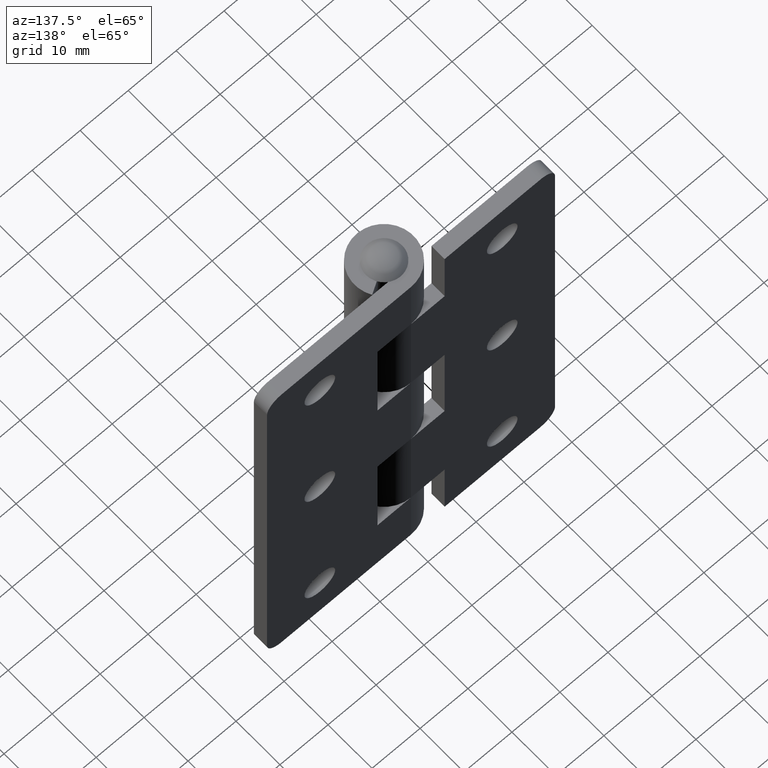
[diagram: clean part render]
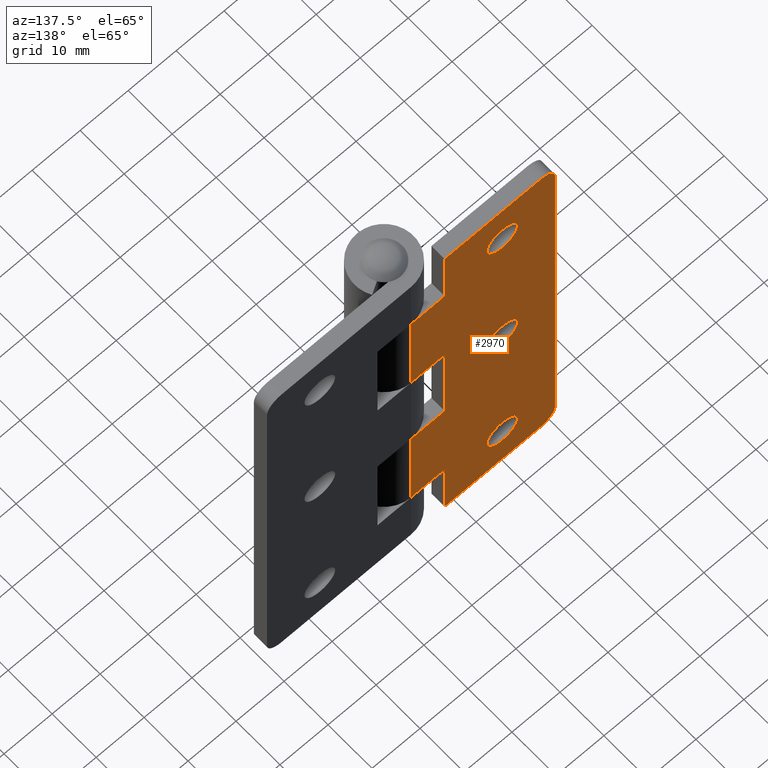
[diagram: same view with one face highlighted and labeled with its STEP entity id]
A machine part, auxiliary view. The second image highlights one B-rep face of the part: STEP entity #2970.
In plain terms, the highlighted face is a freeform B-spline surface patch.
Its self-contained STEP definition (entity closure, byte-faithful):
#1638=CARTESIAN_POINT('',(-22.190135467939509,6.150000000000000,80.251069106411649));
#1639=VERTEX_POINT('',#1638);
#1645=CARTESIAN_POINT('',(-19.0,6.150000000000000,83.200000000000003));
#1646=VERTEX_POINT('',#1645);
#1647=CARTESIAN_POINT('',(-19.0,6.150000000000000,83.200000000000003));
#1648=CARTESIAN_POINT('',(-21.958049573152714,6.150000000000001,83.199999999999989));
#1649=CARTESIAN_POINT('',(-22.190135467939509,6.150000000000000,80.251069106411649));
#1657=(BOUNDED_CURVE()B_SPLINE_CURVE(2,(#1647,#1648,#1649),.UNSPECIFIED.,.F.,.U.)B_SPLINE_CURVE_WITH_KNOTS((3,3),(0.0,0.236331300623896),.UNSPECIFIED.)CURVE()GEOMETRIC_REPRESENTATION_ITEM()RATIONAL_B_SPLINE_CURVE((1.0,0.723120658615590,0.969723356153302))REPRESENTATION_ITEM(''));
#1658=EDGE_CURVE('',#1646,#1639,#1657,.T.);
#1660=CARTESIAN_POINT('',(-15.809864532060489,6.150000000000000,79.748930893588337));
#1661=VERTEX_POINT('',#1660);
#1662=CARTESIAN_POINT('',(-15.809864532060484,6.150000000000000,79.748930893588323));
#1663=CARTESIAN_POINT('',(-15.800000000000006,6.150000000000001,79.874271657492528));
#1664=CARTESIAN_POINT('',(-15.800000000000001,6.150000000000000,80.0));
#1665=CARTESIAN_POINT('',(-15.799999999999997,6.150000000000002,83.200000000000003));
#1666=CARTESIAN_POINT('',(-19.0,6.150000000000000,83.200000000000003));
#1674=(BOUNDED_CURVE()B_SPLINE_CURVE(2,(#1662,#1663,#1664,#1665,#1666),.UNSPECIFIED.,.F.,.U.)B_SPLINE_CURVE_WITH_KNOTS((3,2,3),(0.736331300623894,0.750000000000000,1.0),.UNSPECIFIED.)CURVE()GEOMETRIC_REPRESENTATION_ITEM()RATIONAL_B_SPLINE_CURVE((0.969723356153299,0.983986122570956,1.0,0.707106781186548,1.0))REPRESENTATION_ITEM(''));
#1675=EDGE_CURVE('',#1661,#1646,#1674,.T.);
#1751=CARTESIAN_POINT('',(-19.0,6.150000000000000,76.800000000000011));
#1752=VERTEX_POINT('',#1751);
#1753=CARTESIAN_POINT('',(-19.0,6.150000000000000,76.800000000000011));
#1754=CARTESIAN_POINT('',(-16.041950426847297,6.150000000000002,76.800000000000011));
#1755=CARTESIAN_POINT('',(-15.809864532060487,6.150000000000000,79.748930893588337));
#1763=(BOUNDED_CURVE()B_SPLINE_CURVE(2,(#1753,#1754,#1755),.UNSPECIFIED.,.F.,.U.)B_SPLINE_CURVE_WITH_KNOTS((3,3),(0.500000000000000,0.736331300623895),.UNSPECIFIED.)CURVE()GEOMETRIC_REPRESENTATION_ITEM()RATIONAL_B_SPLINE_CURVE((1.0,0.723120658615590,0.969723356153301))REPRESENTATION_ITEM(''));
#1764=EDGE_CURVE('',#1752,#1661,#1763,.T.);
#1766=CARTESIAN_POINT('',(-22.190135467939509,6.150000000000000,80.251069106411649));
#1767=CARTESIAN_POINT('',(-22.200000000000003,6.150000000000000,80.125728342507472));
#1768=CARTESIAN_POINT('',(-22.199999999999999,6.150000000000000,80.0));
#1769=CARTESIAN_POINT('',(-22.200000000000006,6.150000000000002,76.800000000000011));
#1770=CARTESIAN_POINT('',(-19.0,6.150000000000000,76.800000000000011));
#1778=(BOUNDED_CURVE()B_SPLINE_CURVE(2,(#1766,#1767,#1768,#1769,#1770),.UNSPECIFIED.,.F.,.U.)B_SPLINE_CURVE_WITH_KNOTS((3,2,3),(0.236331300623896,0.250000000000000,0.500000000000000),.UNSPECIFIED.)CURVE()GEOMETRIC_REPRESENTATION_ITEM()RATIONAL_B_SPLINE_CURVE((0.969723356153302,0.983986122570958,1.0,0.707106781186548,1.0))REPRESENTATION_ITEM(''));
#1779=EDGE_CURVE('',#1639,#1752,#1778,.T.);
#1820=CARTESIAN_POINT('',(-22.190135467939509,6.150000000000000,45.251069106411649));
#1821=VERTEX_POINT('',#1820);
#1827=CARTESIAN_POINT('',(-19.0,6.150000000000000,48.200000000000003));
#1828=VERTEX_POINT('',#1827);
#1829=CARTESIAN_POINT('',(-19.0,6.150000000000000,48.200000000000003));
#1830=CARTESIAN_POINT('',(-21.958049573152707,6.150000000000002,48.200000000000003));
#1831=CARTESIAN_POINT('',(-22.190135467939513,6.150000000000000,45.251069106411649));
#1839=(BOUNDED_CURVE()B_SPLINE_CURVE(2,(#1829,#1830,#1831),.UNSPECIFIED.,.F.,.U.)B_SPLINE_CURVE_WITH_KNOTS((3,3),(0.0,0.236331300623895),.UNSPECIFIED.)CURVE()GEOMETRIC_REPRESENTATION_ITEM()RATIONAL_B_SPLINE_CURVE((1.0,0.723120658615590,0.969723356153301))REPRESENTATION_ITEM(''));
#1840=EDGE_CURVE('',#1828,#1821,#1839,.T.);
#1842=CARTESIAN_POINT('',(-15.809864532060489,6.150000000000000,44.748930893588337));
#1843=VERTEX_POINT('',#1842);
#1844=CARTESIAN_POINT('',(-15.809864532060491,6.150000000000000,44.748930893588337));
#1845=CARTESIAN_POINT('',(-15.799999999999999,6.150000000000000,44.874271657492521));
#1846=CARTESIAN_POINT('',(-15.800000000000001,6.150000000000000,45.0));
#1847=CARTESIAN_POINT('',(-15.799999999999997,6.150000000000002,48.199999999999989));
#1848=CARTESIAN_POINT('',(-19.0,6.150000000000000,48.200000000000003));
#1856=(BOUNDED_CURVE()B_SPLINE_CURVE(2,(#1844,#1845,#1846,#1847,#1848),.UNSPECIFIED.,.F.,.U.)B_SPLINE_CURVE_WITH_KNOTS((3,2,3),(0.736331300623895,0.750000000000000,1.0),.UNSPECIFIED.)CURVE()GEOMETRIC_REPRESENTATION_ITEM()RATIONAL_B_SPLINE_CURVE((0.969723356153300,0.983986122570956,1.0,0.707106781186548,1.0))REPRESENTATION_ITEM(''));
#1857=EDGE_CURVE('',#1843,#1828,#1856,.T.);
#1933=CARTESIAN_POINT('',(-19.0,6.150000000000000,41.799999999999997));
#1934=VERTEX_POINT('',#1933);
#1935=CARTESIAN_POINT('',(-19.0,6.150000000000000,41.799999999999997));
#1936=CARTESIAN_POINT('',(-16.041950426847297,6.150000000000002,41.800000000000004));
#1937=CARTESIAN_POINT('',(-15.809864532060487,6.150000000000000,44.748930893588337));
#1945=(BOUNDED_CURVE()B_SPLINE_CURVE(2,(#1935,#1936,#1937),.UNSPECIFIED.,.F.,.U.)B_SPLINE_CURVE_WITH_KNOTS((3,3),(0.500000000000000,0.736331300623895),.UNSPECIFIED.)CURVE()GEOMETRIC_REPRESENTATION_ITEM()RATIONAL_B_SPLINE_CURVE((1.0,0.723120658615590,0.969723356153301))REPRESENTATION_ITEM(''));
#1946=EDGE_CURVE('',#1934,#1843,#1945,.T.);
#1948=CARTESIAN_POINT('',(-22.190135467939513,6.150000000000000,45.251069106411649));
#1949=CARTESIAN_POINT('',(-22.199999999999999,6.150000000000000,45.125728342507465));
#1950=CARTESIAN_POINT('',(-22.199999999999999,6.150000000000000,45.0));
#1951=CARTESIAN_POINT('',(-22.200000000000006,6.150000000000002,41.799999999999997));
#1952=CARTESIAN_POINT('',(-19.0,6.150000000000000,41.799999999999997));
#1960=(BOUNDED_CURVE()B_SPLINE_CURVE(2,(#1948,#1949,#1950,#1951,#1952),.UNSPECIFIED.,.F.,.U.)B_SPLINE_CURVE_WITH_KNOTS((3,2,3),(0.236331300623895,0.250000000000000,0.500000000000000),.UNSPECIFIED.)CURVE()GEOMETRIC_REPRESENTATION_ITEM()RATIONAL_B_SPLINE_CURVE((0.969723356153301,0.983986122570957,1.0,0.707106781186548,1.0))REPRESENTATION_ITEM(''));
#1961=EDGE_CURVE('',#1821,#1934,#1960,.T.);
#2002=CARTESIAN_POINT('',(-22.190135467939509,6.150000000000000,10.251069106411849));
#2003=VERTEX_POINT('',#2002);
#2009=CARTESIAN_POINT('',(-19.0,6.150000000000000,13.200000000000200));
#2010=VERTEX_POINT('',#2009);
#2011=CARTESIAN_POINT('',(-19.0,6.150000000000000,13.200000000000200));
#2012=CARTESIAN_POINT('',(-21.958049573152699,6.150000000000000,13.200000000000200));
#2013=CARTESIAN_POINT('',(-22.190135467939509,6.150000000000000,10.251069106411853));
#2021=(BOUNDED_CURVE()B_SPLINE_CURVE(2,(#2011,#2012,#2013),.UNSPECIFIED.,.F.,.U.)B_SPLINE_CURVE_WITH_KNOTS((3,3),(0.0,0.236331300623895),.UNSPECIFIED.)CURVE()GEOMETRIC_REPRESENTATION_ITEM()RATIONAL_B_SPLINE_CURVE((1.0,0.723120658615591,0.969723356153301))REPRESENTATION_ITEM(''));
#2022=EDGE_CURVE('',#2010,#2003,#2021,.T.);
#2024=CARTESIAN_POINT('',(-15.809864532060489,6.150000000000000,9.748930893588545));
#2025=VERTEX_POINT('',#2024);
#2026=CARTESIAN_POINT('',(-15.809864532060484,6.150000000000000,9.748930893588545));
#2027=CARTESIAN_POINT('',(-15.799999999999999,6.150000000000001,9.874271657492722));
#2028=CARTESIAN_POINT('',(-15.800000000000001,6.150000000000000,10.000000000000201));
#2029=CARTESIAN_POINT('',(-15.799999999999997,6.150000000000002,13.200000000000200));
#2030=CARTESIAN_POINT('',(-19.0,6.150000000000000,13.200000000000200));
#2038=(BOUNDED_CURVE()B_SPLINE_CURVE(2,(#2026,#2027,#2028,#2029,#2030),.UNSPECIFIED.,.F.,.U.)B_SPLINE_CURVE_WITH_KNOTS((3,2,3),(0.736331300623895,0.750000000000000,1.0),.UNSPECIFIED.)CURVE()GEOMETRIC_REPRESENTATION_ITEM()RATIONAL_B_SPLINE_CURVE((0.969723356153301,0.983986122570957,1.0,0.707106781186548,1.0))REPRESENTATION_ITEM(''));
#2039=EDGE_CURVE('',#2025,#2010,#2038,.T.);
#2115=CARTESIAN_POINT('',(-19.0,6.150000000000000,6.800000000000200));
#2116=VERTEX_POINT('',#2115);
#2117=CARTESIAN_POINT('',(-19.0,6.150000000000000,6.800000000000200));
#2118=CARTESIAN_POINT('',(-16.041950426847297,6.150000000000002,6.800000000000201));
#2119=CARTESIAN_POINT('',(-15.809864532060487,6.150000000000000,9.748930893588545));
#2127=(BOUNDED_CURVE()B_SPLINE_CURVE(2,(#2117,#2118,#2119),.UNSPECIFIED.,.F.,.U.)B_SPLINE_CURVE_WITH_KNOTS((3,3),(0.500000000000000,0.736331300623895),.UNSPECIFIED.)CURVE()GEOMETRIC_REPRESENTATION_ITEM()RATIONAL_B_SPLINE_CURVE((1.0,0.723120658615590,0.969723356153301))REPRESENTATION_ITEM(''));
#2128=EDGE_CURVE('',#2116,#2025,#2127,.T.);
#2130=CARTESIAN_POINT('',(-22.190135467939509,6.150000000000000,10.251069106411853));
#2131=CARTESIAN_POINT('',(-22.199999999999996,6.150000000000001,10.125728342507674));
#2132=CARTESIAN_POINT('',(-22.199999999999999,6.150000000000000,10.000000000000201));
#2133=CARTESIAN_POINT('',(-22.200000000000006,6.150000000000002,6.800000000000200));
#2134=CARTESIAN_POINT('',(-19.0,6.150000000000000,6.800000000000200));
#2142=(BOUNDED_CURVE()B_SPLINE_CURVE(2,(#2130,#2131,#2132,#2133,#2134),.UNSPECIFIED.,.F.,.U.)B_SPLINE_CURVE_WITH_KNOTS((3,2,3),(0.236331300623895,0.250000000000000,0.500000000000000),.UNSPECIFIED.)CURVE()GEOMETRIC_REPRESENTATION_ITEM()RATIONAL_B_SPLINE_CURVE((0.969723356153301,0.983986122570957,1.0,0.707106781186548,1.0))REPRESENTATION_ITEM(''));
#2143=EDGE_CURVE('',#2003,#2116,#2142,.T.);
#2180=CARTESIAN_POINT('',(-27.0,6.150000000000000,90.0));
#2181=VERTEX_POINT('',#2180);
#2187=CARTESIAN_POINT('',(-30.0,6.150000000000000,87.0));
#2188=VERTEX_POINT('',#2187);
#2189=CARTESIAN_POINT('',(-30.0,6.150000000000000,87.0));
#2190=CARTESIAN_POINT('',(-30.000000000000004,6.150000000000002,89.999999999999986));
#2191=CARTESIAN_POINT('',(-27.0,6.150000000000000,90.0));
#2199=(BOUNDED_CURVE()B_SPLINE_CURVE(2,(#2189,#2190,#2191),.UNSPECIFIED.,.F.,.U.)CURVE()GEOMETRIC_REPRESENTATION_ITEM()QUASI_UNIFORM_CURVE()RATIONAL_B_SPLINE_CURVE((1.0,0.707106781186548,1.0))REPRESENTATION_ITEM(''));
#2200=EDGE_CURVE('',#2188,#2181,#2199,.T.);
#2241=CARTESIAN_POINT('',(-30.0,6.150000000000000,3.0));
#2242=VERTEX_POINT('',#2241);
#2248=CARTESIAN_POINT('',(-27.0,6.150000000000000,0.0));
#2249=VERTEX_POINT('',#2248);
#2250=CARTESIAN_POINT('',(-27.0,6.150000000000000,0.0));
#2251=CARTESIAN_POINT('',(-30.000000000000004,6.150000000000002,0.0));
#2252=CARTESIAN_POINT('',(-30.0,6.150000000000000,3.0));
#2260=(BOUNDED_CURVE()B_SPLINE_CURVE(2,(#2250,#2251,#2252),.UNSPECIFIED.,.F.,.U.)CURVE()GEOMETRIC_REPRESENTATION_ITEM()QUASI_UNIFORM_CURVE()RATIONAL_B_SPLINE_CURVE((1.0,0.707106781186548,1.0))REPRESENTATION_ITEM(''));
#2261=EDGE_CURVE('',#2249,#2242,#2260,.T.);
#2278=CARTESIAN_POINT('',(-7.000000000000100,6.150000000000000,34.799999999999997));
#2279=VERTEX_POINT('',#2278);
#2285=CARTESIAN_POINT('',(-7.000000000000100,6.150000000000000,55.200000000000003));
#2286=VERTEX_POINT('',#2285);
#2287=CARTESIAN_POINT('',(-7.000000000000100,6.150000000000000,55.200000000000003));
#2288=CARTESIAN_POINT('',(-7.000000000000100,6.150000000000000,34.799999999999997));
#2289=QUASI_UNIFORM_CURVE('',1,(#2287,#2288),.UNSPECIFIED.,.F.,.U.);
#2290=EDGE_CURVE('',#2286,#2279,#2289,.T.);
#2314=CARTESIAN_POINT('',(0.0,6.150000000000000,55.200000000000003));
#2315=VERTEX_POINT('',#2314);
#2369=CARTESIAN_POINT('',(0.0,6.150000000000000,55.200000000000003));
#2370=CARTESIAN_POINT('',(-7.000000000000100,6.150000000000000,55.200000000000003));
#2371=QUASI_UNIFORM_CURVE('',1,(#2369,#2370),.UNSPECIFIED.,.F.,.U.);
#2372=EDGE_CURVE('',#2315,#2286,#2371,.T.);
#2382=CARTESIAN_POINT('',(0.0,6.150000000000000,34.799999999999997));
#2383=VERTEX_POINT('',#2382);
#2384=CARTESIAN_POINT('',(-7.000000000000100,6.150000000000000,34.799999999999997));
#2385=CARTESIAN_POINT('',(0.0,6.150000000000000,34.799999999999997));
#2386=QUASI_UNIFORM_CURVE('',1,(#2384,#2385),.UNSPECIFIED.,.F.,.U.);
#2387=EDGE_CURVE('',#2279,#2383,#2386,.T.);
#2461=CARTESIAN_POINT('',(-7.000000000000100,6.150000000000000,0.0));
#2462=VERTEX_POINT('',#2461);
#2468=CARTESIAN_POINT('',(-7.000000000000100,6.150000000000000,13.500000000000000));
#2469=VERTEX_POINT('',#2468);
#2470=CARTESIAN_POINT('',(-7.000000000000100,6.150000000000000,13.500000000000000));
#2471=CARTESIAN_POINT('',(-7.000000000000100,6.150000000000000,0.0));
#2472=QUASI_UNIFORM_CURVE('',1,(#2470,#2471),.UNSPECIFIED.,.F.,.U.);
#2473=EDGE_CURVE('',#2469,#2462,#2472,.T.);
#2488=CARTESIAN_POINT('',(0.0,6.150000000000000,13.500000000000000));
#2489=VERTEX_POINT('',#2488);
#2545=CARTESIAN_POINT('',(0.0,6.150000000000000,13.500000000000000));
#2546=CARTESIAN_POINT('',(-7.000000000000100,6.150000000000000,13.500000000000000));
#2547=QUASI_UNIFORM_CURVE('',1,(#2545,#2546),.UNSPECIFIED.,.F.,.U.);
#2548=EDGE_CURVE('',#2489,#2469,#2547,.T.);
#2567=CARTESIAN_POINT('',(-7.000000000000100,6.150000000000000,76.500000000000000));
#2568=VERTEX_POINT('',#2567);
#2574=CARTESIAN_POINT('',(-7.000000000000100,6.150000000000000,90.0));
#2575=VERTEX_POINT('',#2574);
#2576=CARTESIAN_POINT('',(-7.000000000000100,6.150000000000000,76.500000000000000));
#2577=CARTESIAN_POINT('',(-7.000000000000100,6.150000000000000,90.0));
#2578=QUASI_UNIFORM_CURVE('',1,(#2576,#2577),.UNSPECIFIED.,.F.,.U.);
#2579=EDGE_CURVE('',#2568,#2575,#2578,.T.);
#2596=CARTESIAN_POINT('',(0.0,6.150000000000000,76.500000000000000));
#2597=VERTEX_POINT('',#2596);
#2617=CARTESIAN_POINT('',(0.0,6.150000000000000,76.500000000000000));
#2618=CARTESIAN_POINT('',(-7.000000000000100,6.150000000000000,76.500000000000000));
#2619=QUASI_UNIFORM_CURVE('',1,(#2617,#2618),.UNSPECIFIED.,.F.,.U.);
#2620=EDGE_CURVE('',#2597,#2568,#2619,.T.);
#2670=CARTESIAN_POINT('',(-27.0,6.150000000000000,0.0));
#2671=CARTESIAN_POINT('',(-7.000000000000100,6.150000000000000,0.0));
#2672=QUASI_UNIFORM_CURVE('',1,(#2670,#2671),.UNSPECIFIED.,.F.,.U.);
#2673=EDGE_CURVE('',#2249,#2462,#2672,.T.);
#2684=CARTESIAN_POINT('',(-27.0,6.150000000000000,90.0));
#2685=CARTESIAN_POINT('',(-7.000000000000100,6.150000000000000,90.0));
#2686=QUASI_UNIFORM_CURVE('',1,(#2684,#2685),.UNSPECIFIED.,.F.,.U.);
#2687=EDGE_CURVE('',#2181,#2575,#2686,.T.);
#2704=CARTESIAN_POINT('',(-30.0,6.150000000000000,87.0));
#2705=CARTESIAN_POINT('',(-30.0,6.150000000000000,3.0));
#2706=QUASI_UNIFORM_CURVE('',1,(#2704,#2705),.UNSPECIFIED.,.F.,.U.);
#2707=EDGE_CURVE('',#2188,#2242,#2706,.T.);
#2848=CARTESIAN_POINT('',(0.0,6.150000000000000,76.500000000000000));
#2849=CARTESIAN_POINT('',(0.0,6.150000000000000,55.200000000000003));
#2850=QUASI_UNIFORM_CURVE('',1,(#2848,#2849),.UNSPECIFIED.,.F.,.U.);
#2851=EDGE_CURVE('',#2597,#2315,#2850,.T.);
#2883=CARTESIAN_POINT('',(0.0,6.150000000000000,34.799999999999997));
#2884=CARTESIAN_POINT('',(0.0,6.150000000000000,13.500000000000000));
#2885=QUASI_UNIFORM_CURVE('',1,(#2883,#2884),.UNSPECIFIED.,.F.,.U.);
#2886=EDGE_CURVE('',#2383,#2489,#2885,.T.);
#2931=CARTESIAN_POINT('',(-31.498499941854181,6.150000000000000,-4.495499825562538));
#2932=CARTESIAN_POINT('',(-31.498499941854181,6.150000000000000,94.495502239550646));
#2933=CARTESIAN_POINT('',(1.498500746516883,6.150000000000000,-4.495499825562538));
#2934=CARTESIAN_POINT('',(1.498500746516883,6.150000000000000,94.495502239550646));
#2935=B_SPLINE_SURFACE_WITH_KNOTS('',1,1,((#2931,#2933),(#2932,#2934)),.UNSPECIFIED.,.F.,.F.,.U.,(2,2),(2,2),(0.0,98.991002065113179),(0.0,32.997000688371060),.UNSPECIFIED.);
#2936=ORIENTED_EDGE('',*,*,#2673,.F.);
#2937=ORIENTED_EDGE('',*,*,#2261,.T.);
#2938=ORIENTED_EDGE('',*,*,#2707,.F.);
#2939=ORIENTED_EDGE('',*,*,#2200,.T.);
#2940=ORIENTED_EDGE('',*,*,#2687,.T.);
#2941=ORIENTED_EDGE('',*,*,#2579,.F.);
#2942=ORIENTED_EDGE('',*,*,#2620,.F.);
#2943=ORIENTED_EDGE('',*,*,#2851,.T.);
#2944=ORIENTED_EDGE('',*,*,#2372,.T.);
#2945=ORIENTED_EDGE('',*,*,#2290,.T.);
#2946=ORIENTED_EDGE('',*,*,#2387,.T.);
#2947=ORIENTED_EDGE('',*,*,#2886,.T.);
#2948=ORIENTED_EDGE('',*,*,#2548,.T.);
#2949=ORIENTED_EDGE('',*,*,#2473,.T.);
#2950=EDGE_LOOP('',(#2936,#2937,#2938,#2939,#2940,#2941,#2942,#2943,#2944,#2945,#2946,#2947,#2948,#2949));
#2951=FACE_OUTER_BOUND('',#2950,.T.);
#2952=ORIENTED_EDGE('',*,*,#2128,.T.);
#2953=ORIENTED_EDGE('',*,*,#2039,.T.);
#2954=ORIENTED_EDGE('',*,*,#2022,.T.);
#2955=ORIENTED_EDGE('',*,*,#2143,.T.);
#2956=EDGE_LOOP('',(#2952,#2953,#2954,#2955));
#2957=FACE_BOUND('',#2956,.T.);
#2958=ORIENTED_EDGE('',*,*,#1946,.T.);
#2959=ORIENTED_EDGE('',*,*,#1857,.T.);
#2960=ORIENTED_EDGE('',*,*,#1840,.T.);
#2961=ORIENTED_EDGE('',*,*,#1961,.T.);
#2962=EDGE_LOOP('',(#2958,#2959,#2960,#2961));
#2963=FACE_BOUND('',#2962,.T.);
#2964=ORIENTED_EDGE('',*,*,#1764,.T.);
#2965=ORIENTED_EDGE('',*,*,#1675,.T.);
#2966=ORIENTED_EDGE('',*,*,#1658,.T.);
#2967=ORIENTED_EDGE('',*,*,#1779,.T.);
#2968=EDGE_LOOP('',(#2964,#2965,#2966,#2967));
#2969=FACE_BOUND('',#2968,.T.);
#2970=ADVANCED_FACE('',(#2951,#2957,#2963,#2969),#2935,.T.);